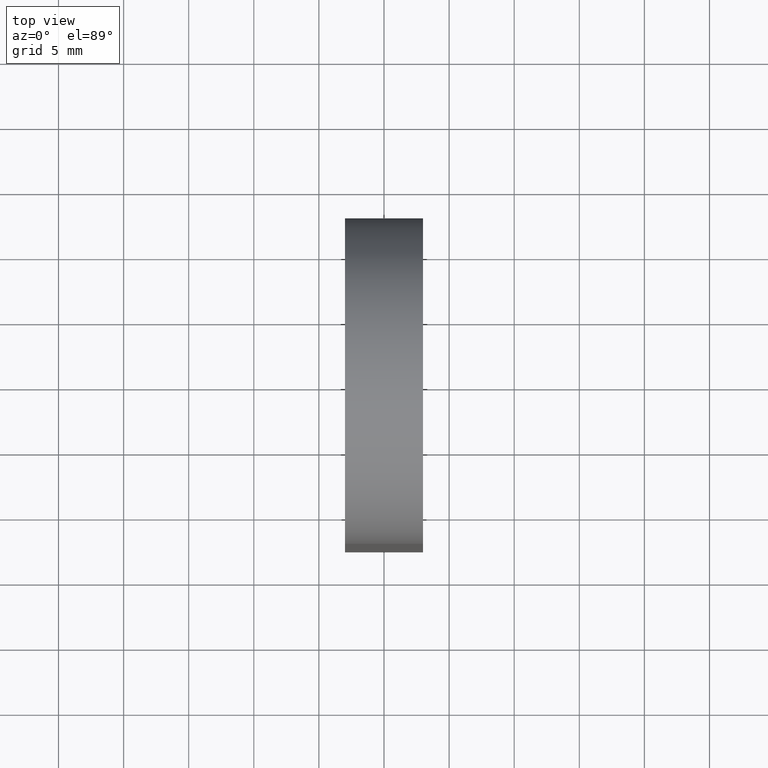
[diagram: clean part render]
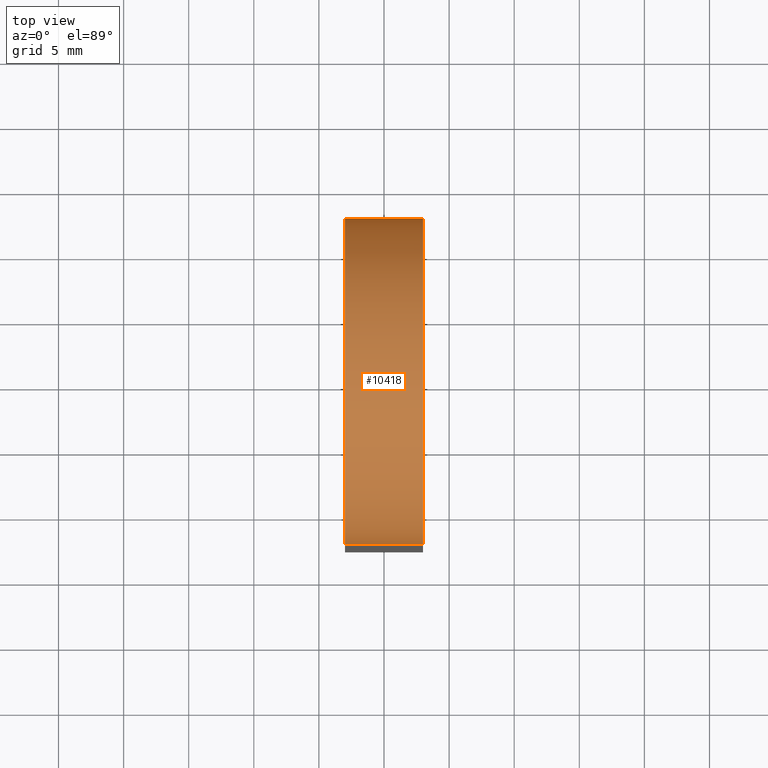
[diagram: same view with one face highlighted and labeled with its STEP entity id]
A machine part, top view. The second image highlights one B-rep face of the part: STEP entity #10418.
In plain terms, the highlighted cylindrical surface (partial cylindrical patch) has radius 12.5 mm, axis along (-1, -0, -0).
Its self-contained STEP definition (entity closure, byte-faithful):
#1425 = VERTEX_POINT ( 'NONE', #11411 ) ;
#1637 = DIRECTION ( 'NONE',  ( 0.000000000000000000, 0.000000000000000000, 1.000000000000000000 ) ) ;
#1810 = VERTEX_POINT ( 'NONE', #9870 ) ;
#2234 = AXIS2_PLACEMENT_3D ( 'NONE', #6159, #10816, #3273 ) ;
#2326 = VERTEX_POINT ( 'NONE', #10321 ) ;
#2502 = AXIS2_PLACEMENT_3D ( 'NONE', #10173, #8281, #1637 ) ;
#2578 = LINE ( 'NONE', #3849, #11065 ) ;
#3171 = CARTESIAN_POINT ( 'NONE',  ( 3.000000000000000000, 0.000000000000000000, 37.50000000000000000 ) ) ;
#3265 = ORIENTED_EDGE ( 'NONE', *, *, #3411, .F. ) ;
#3273 = DIRECTION ( 'NONE',  ( 0.000000000000000000, 0.000000000000000000, 1.000000000000000000 ) ) ;
#3411 = EDGE_CURVE ( 'NONE', #1425, #2326, #6321, .T. ) ;
#3796 = VECTOR ( 'NONE', #9735, 1000.000000000000000 ) ;
#3849 = CARTESIAN_POINT ( 'NONE',  ( 3.000000000000000000, 12.50000000000000178, 37.50000000000000000 ) ) ;
#4169 = FACE_OUTER_BOUND ( 'NONE', #8797, .T. ) ;
#5030 = EDGE_CURVE ( 'NONE', #8131, #1810, #2578, .T. ) ;
#5104 = CARTESIAN_POINT ( 'NONE',  ( 3.000000000000000000, 12.50000000000000178, 37.50000000000000000 ) ) ;
#5388 = DIRECTION ( 'NONE',  ( 0.000000000000000000, 0.000000000000000000, 1.000000000000000000 ) ) ;
#5666 = EDGE_CURVE ( 'NONE', #2326, #1810, #7787, .T. ) ;
#5936 = CIRCLE ( 'NONE', #2502, 12.50000000000000355 ) ;
#6159 = CARTESIAN_POINT ( 'NONE',  ( -3.000000000000000000, 0.000000000000000000, 37.50000000000000000 ) ) ;
#6321 = LINE ( 'NONE', #7792, #3796 ) ;
#7320 = DIRECTION ( 'NONE',  ( -1.000000000000000000, -0.000000000000000000, -0.000000000000000000 ) ) ;
#7597 = ORIENTED_EDGE ( 'NONE', *, *, #5030, .T. ) ;
#7787 = CIRCLE ( 'NONE', #2234, 12.50000000000000355 ) ;
#7792 = CARTESIAN_POINT ( 'NONE',  ( 3.000000000000000000, -12.50000000000000178, 37.50000000000000000 ) ) ;
#8131 = VERTEX_POINT ( 'NONE', #5104 ) ;
#8281 = DIRECTION ( 'NONE',  ( -1.000000000000000000, -0.000000000000000000, 0.000000000000000000 ) ) ;
#8469 = CYLINDRICAL_SURFACE ( 'NONE', #9111, 12.50000000000000355 ) ;
#8582 = DIRECTION ( 'NONE',  ( -1.000000000000000000, -0.000000000000000000, -0.000000000000000000 ) ) ;
#8797 = EDGE_LOOP ( 'NONE', ( #11753, #3265, #11797, #7597 ) ) ;
#9111 = AXIS2_PLACEMENT_3D ( 'NONE', #3171, #7320, #5388 ) ;
#9735 = DIRECTION ( 'NONE',  ( -1.000000000000000000, -0.000000000000000000, -0.000000000000000000 ) ) ;
#9870 = CARTESIAN_POINT ( 'NONE',  ( -3.000000000000000000, 12.50000000000000178, 37.50000000000000000 ) ) ;
#10173 = CARTESIAN_POINT ( 'NONE',  ( 3.000000000000000000, 0.000000000000000000, 37.50000000000000000 ) ) ;
#10321 = CARTESIAN_POINT ( 'NONE',  ( -3.000000000000000000, -12.50000000000000178, 37.50000000000000000 ) ) ;
#10418 = ADVANCED_FACE ( 'NONE', ( #4169 ), #8469, .T. ) ;
#10816 = DIRECTION ( 'NONE',  ( -1.000000000000000000, -0.000000000000000000, 0.000000000000000000 ) ) ;
#10932 = EDGE_CURVE ( 'NONE', #1425, #8131, #5936, .T. ) ;
#11065 = VECTOR ( 'NONE', #8582, 1000.000000000000000 ) ;
#11411 = CARTESIAN_POINT ( 'NONE',  ( 3.000000000000000000, -12.50000000000000178, 37.50000000000000000 ) ) ;
#11753 = ORIENTED_EDGE ( 'NONE', *, *, #5666, .F. ) ;
#11797 = ORIENTED_EDGE ( 'NONE', *, *, #10932, .T. ) ;